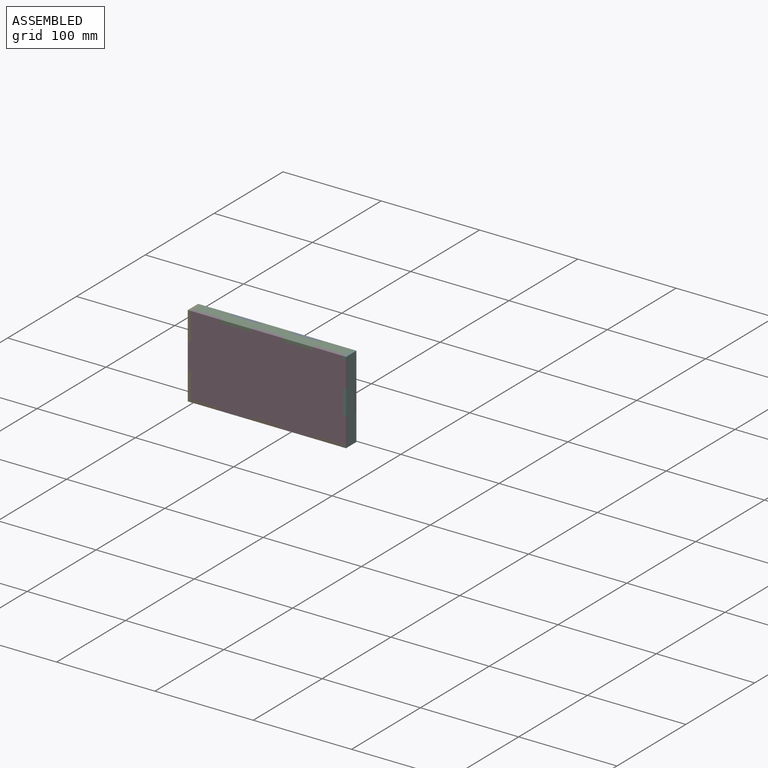
[diagram: assembled view]
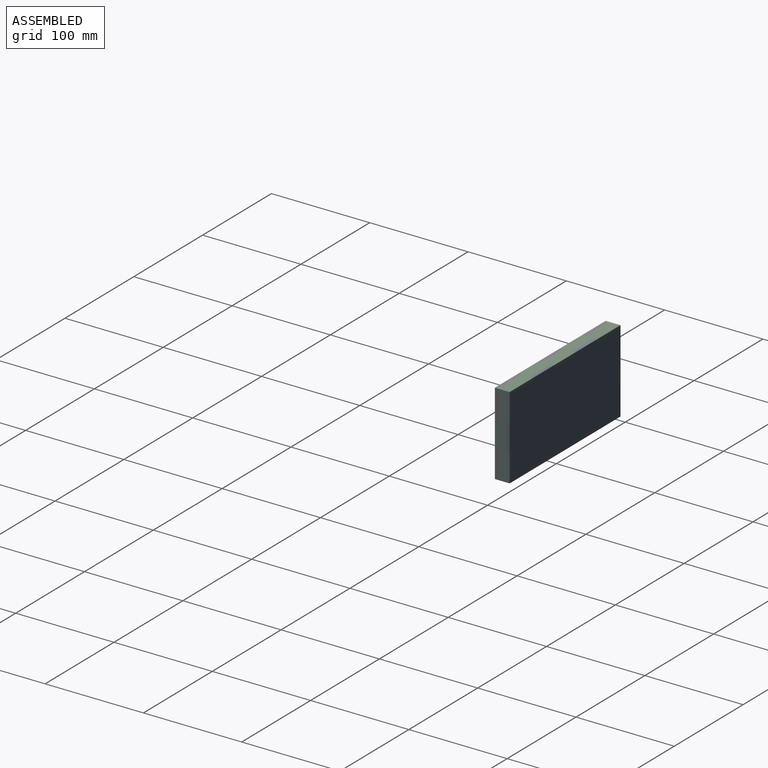
[diagram: assembled view, second angle]
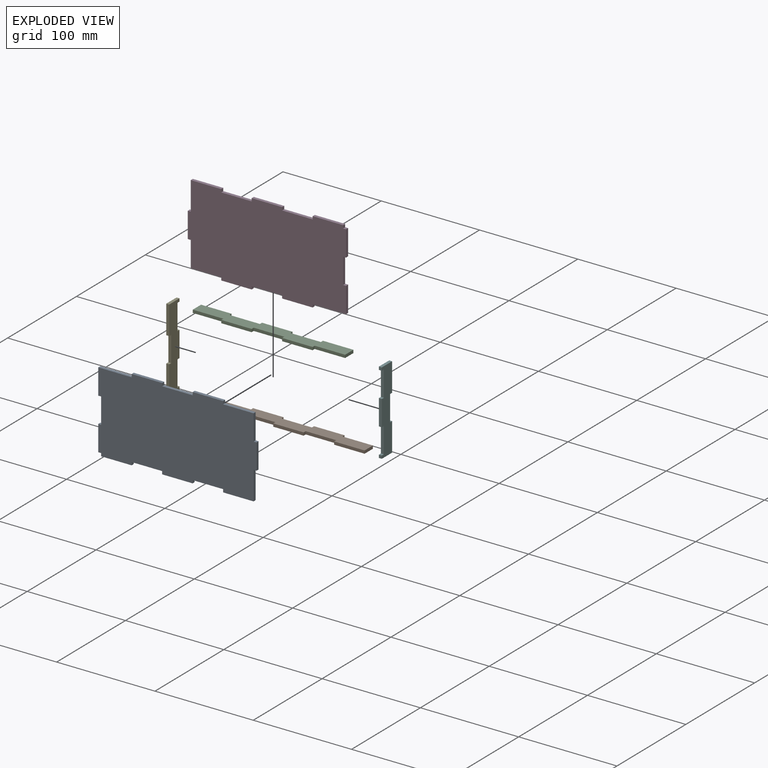
[diagram: exploded view]
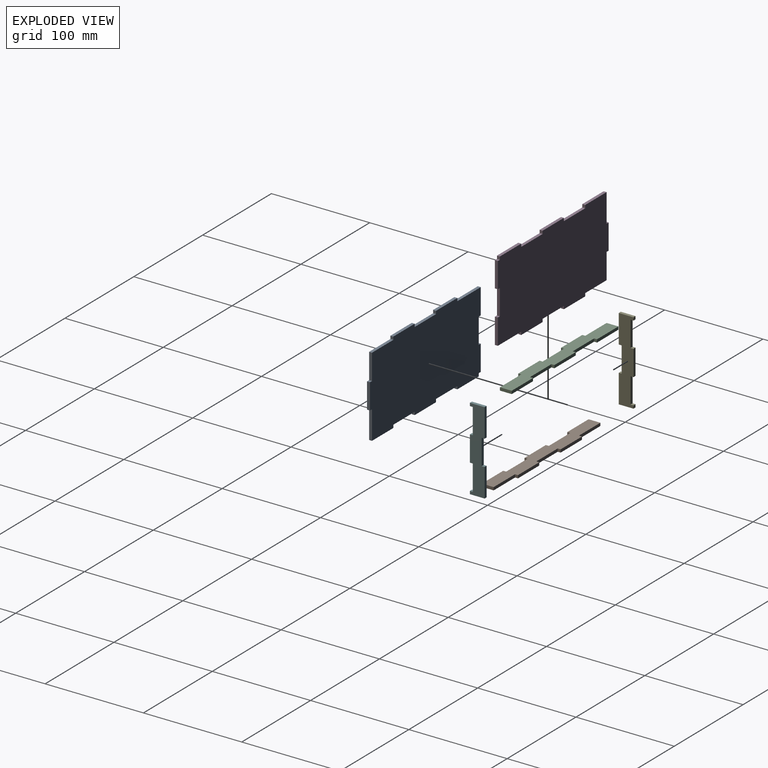
[diagram: exploded view, second angle]
ASSEMBLY  parts=6 mates=4
PART A: 32 faces, bbox 161x3x84 mm
  f0: plane 31x3mm, normal (0,0,1), area 93mm2, adj f1,f29,f30,f31
  f1: plane 3x3mm, normal (-1,0,0), area 9mm2, adj f0,f2,f30,f31
  f2: plane 31x3mm, normal (0,0,1), area 93mm2, adj f1,f3,f30,f31
  f3: plane 3x3mm, normal (1,0,0), area 9mm2, adj f2,f4,f30,f31
  f4: plane 31x3mm, normal (0,0,1), area 93mm2, adj f3,f5,f30,f31
  f5: plane 3x3mm, normal (-1,0,0), area 9mm2, adj f4,f6,f30,f31
  f6: plane 31x3mm, normal (0,0,1), area 93mm2, adj f5,f7,f30,f31
  f7: plane 3x3mm, normal (1,0,0), area 9mm2, adj f6,f8,f30,f31
  f8: plane 31x3mm, normal (0,0,1), area 93mm2, adj f7,f9,f30,f31
  f9: plane 29x3mm, normal (-1,0,0), area 87mm2, adj f8,f10,f30,f31
  f10: plane 3x3mm, normal (0,0,1), area 9mm2, adj f9,f11,f30,f31
  f11: plane 26x3mm, normal (-1,0,0), area 78mm2, adj f10,f12,f30,f31
  f12: plane 3x3mm, normal (0,0,-1), area 9mm2, adj f11,f13,f30,f31
  f13: plane 26x3mm, normal (-1,0,0), area 78mm2, adj f12,f14,f30,f31
  f14: plane 31x3mm, normal (0,0,-1), area 93mm2, adj f13,f15,f30,f31
  f15: plane 3x3mm, normal (-1,0,0), area 9mm2, adj f14,f16,f30,f31
  f16: plane 31x3mm, normal (0,0,-1), area 93mm2, adj f15,f17,f30,f31
  f17: plane 3x3mm, normal (1,0,0), area 9mm2, adj f16,f18,f30,f31
  f18: plane 31x3mm, normal (0,0,-1), area 93mm2, adj f17,f19,f30,f31
  f19: plane 3x3mm, normal (-1,0,0), area 9mm2, adj f18,f20,f30,f31
  f20: plane 31x3mm, normal (0,0,-1), area 93mm2, adj f19,f21,f30,f31
  f21: plane 3x3mm, normal (1,0,0), area 9mm2, adj f20,f22,f30,f31
  f22: plane 34x3mm, normal (0,0,-1), area 102mm2, adj f21,f23,f30,f31
  f23: plane 26x3mm, normal (1,0,0), area 78mm2, adj f22,f24,f30,f31
  f24: plane 3x3mm, normal (0,0,1), area 9mm2, adj f23,f25,f30,f31
  f25: plane 26x3mm, normal (1,0,0), area 78mm2, adj f24,f26,f30,f31
  f26: plane 3x3mm, normal (0,0,-1), area 9mm2, adj f25,f27,f30,f31
  f27: plane 26x3mm, normal (1,0,0), area 78mm2, adj f26,f28,f30,f31
  f28: plane 3x3mm, normal (0,0,1), area 9mm2, adj f27,f29,f30,f31
  f29: plane 3x3mm, normal (1,0,0), area 9mm2, adj f0,f28,f30,f31
  f30: plane 161x84mm, normal (0,-1,0), area 12789mm2, adj f0,f1,f2,f3,f4,f5,f6,f7
  f31: plane 161x84mm, normal (0,1,0), area 12789mm2, adj f0,f1,f2,f3,f4,f5,f6,f7
PART B: 22 faces, bbox 155x15x3 mm
  f0: plane 31x3mm, normal (0,-1,0), area 93mm2, adj f1,f19,f20,f21
  f1: plane 3x3mm, normal (1,0,0), area 9mm2, adj f0,f2,f20,f21
  f2: plane 31x3mm, normal (0,-1,0), area 93mm2, adj f1,f3,f20,f21
  f3: plane 3x3mm, normal (-1,0,0), area 9mm2, adj f2,f4,f20,f21
  f4: plane 31x3mm, normal (0,-1,0), area 93mm2, adj f3,f5,f20,f21
  f5: plane 3x3mm, normal (1,0,0), area 9mm2, adj f4,f6,f20,f21
  f6: plane 31x3mm, normal (0,-1,0), area 93mm2, adj f5,f7,f20,f21
  f7: plane 12x3mm, normal (1,0,0), area 36mm2, adj f6,f8,f20,f21
  f8: plane 31x3mm, normal (0,1,0), area 93mm2, adj f7,f9,f20,f21
  f9: plane 3x3mm, normal (-1,0,0), area 9mm2, adj f8,f10,f20,f21
  f10: plane 31x3mm, normal (0,1,0), area 93mm2, adj f9,f11,f20,f21
  f11: plane 3x3mm, normal (1,0,0), area 9mm2, adj f10,f12,f20,f21
  f12: plane 31x3mm, normal (0,1,0), area 93mm2, adj f11,f13,f20,f21
  f13: plane 3x3mm, normal (-1,0,0), area 9mm2, adj f12,f14,f20,f21
  f14: plane 31x3mm, normal (0,1,0), area 93mm2, adj f13,f15,f20,f21
  f15: plane 3x3mm, normal (1,0,0), area 9mm2, adj f14,f16,f20,f21
  f16: plane 31x3mm, normal (0,1,0), area 93mm2, adj f15,f17,f20,f21
  f17: plane 12x3mm, normal (-1,0,0), area 36mm2, adj f16,f18,f20,f21
  f18: plane 31x3mm, normal (0,-1,0), area 93mm2, adj f17,f19,f20,f21
  f19: plane 3x3mm, normal (-1,0,0), area 9mm2, adj f0,f18,f20,f21
  f20: plane 155x15mm, normal (0,0,1), area 1860mm2, adj f0,f1,f2,f3,f4,f5,f6,f7
  f21: plane 155x15mm, normal (0,0,-1), area 1860mm2, adj f0,f1,f2,f3,f4,f5,f6,f7
PART C: same geometry as B
PART D: same geometry as A
PART E: 18 faces, bbox 3x15x84 mm
  f0: plane 15x3mm, normal (0,0,1), area 45mm2, adj f1,f15,f16,f17
  f1: plane 3x3mm, normal (0,-1,0), area 9mm2, adj f0,f2,f16,f17
  f2: plane 3x3mm, normal (0,0,-1), area 9mm2, adj f1,f3,f16,f17
  f3: plane 26x3mm, normal (0,-1,0), area 78mm2, adj f2,f4,f16,f17
  f4: plane 3x3mm, normal (0,0,1), area 9mm2, adj f3,f5,f16,f17
  f5: plane 26x3mm, normal (0,-1,0), area 78mm2, adj f4,f6,f16,f17
  f6: plane 3x3mm, normal (0,0,-1), area 9mm2, adj f5,f7,f16,f17
  f7: plane 26x3mm, normal (0,-1,0), area 78mm2, adj f6,f8,f16,f17
  f8: plane 3x3mm, normal (0,0,1), area 9mm2, adj f7,f9,f16,f17
  f9: plane 3x3mm, normal (0,-1,0), area 9mm2, adj f8,f10,f16,f17
  f10: plane 15x3mm, normal (0,0,-1), area 45mm2, adj f9,f11,f16,f17
  f11: plane 29x3mm, normal (0,1,0), area 87mm2, adj f10,f12,f16,f17
  f12: plane 3x3mm, normal (0,0,1), area 9mm2, adj f11,f13,f16,f17
  f13: plane 26x3mm, normal (0,1,0), area 78mm2, adj f12,f14,f16,f17
  f14: plane 3x3mm, normal (0,0,-1), area 9mm2, adj f13,f15,f16,f17
  f15: plane 29x3mm, normal (0,1,0), area 87mm2, adj f0,f14,f16,f17
  f16: plane 84x15mm, normal (1,0,0), area 1026mm2, adj f0,f1,f2,f3,f4,f5,f6,f7
  f17: plane 84x15mm, normal (-1,0,0), area 1026mm2, adj f0,f1,f2,f3,f4,f5,f6,f7
PART F: same geometry as E
PLACE A rot(axis=(0,1,0),180deg) t=(-21.39,-6.15,-73.39)mm
PLACE B rot(axis=(0,0,1),180deg) t=(-21.39,-9.15,-157.39)mm
PLACE C t=(-21.39,-18.15,-76.39)mm
PLACE D t=(-21.39,-18.15,-73.39)mm
PLACE E rot(axis=(1,0,0),180deg) t=(-179.39,-9.15,-73.39)mm
PLACE F t=(-21.39,-18.15,-73.39)mm
MATE fastened C.f11 <-> A.f17  axis (1,0,0) through (-5.89,-7.65,-32.89)mm
MATE fastened F.f4 <-> D.f26  axis (0,0,1) through (57.61,-19.65,-60.39)mm
MATE fastened B.f1 <-> A.f5  axis (-1,0,0) through (-5.89,-7.65,-113.89)mm
MATE fastened E.f14 <-> D.f12  axis (0,0,1) through (-100.39,-19.65,-86.39)mm
